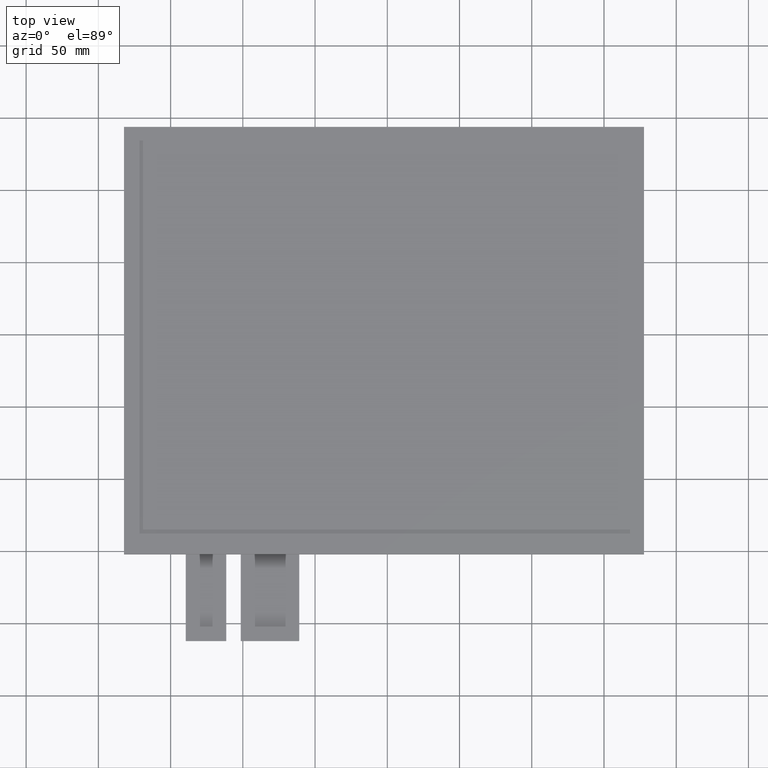
[diagram: clean part render]
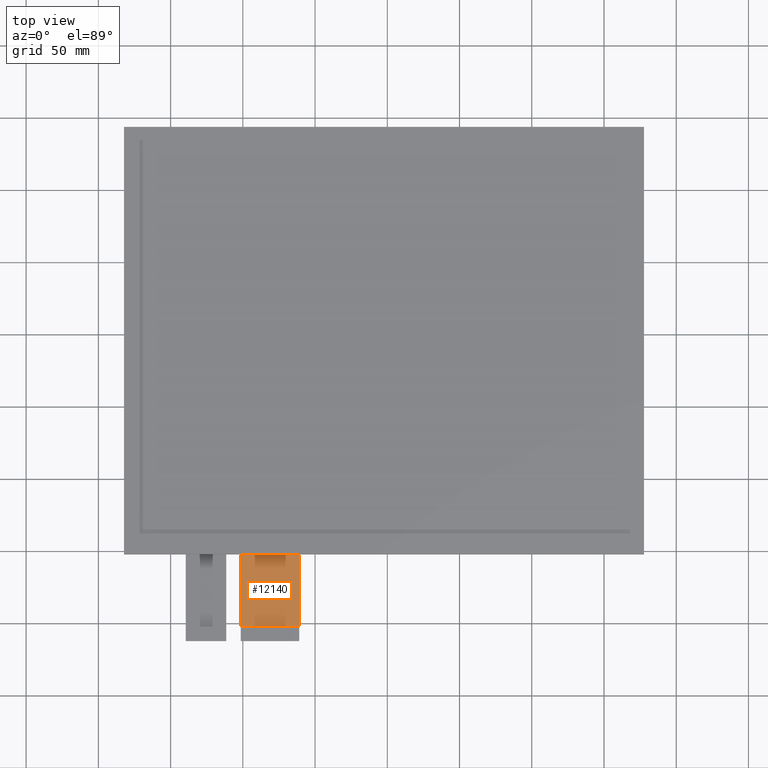
[diagram: same view with one face highlighted and labeled with its STEP entity id]
A machine part, top view. The second image highlights one B-rep face of the part: STEP entity #12140.
In plain terms, the highlighted planar face has unit normal (0, 0, 1).
Its self-contained STEP definition (entity closure, byte-faithful):
#682=PLANE('',#12746);
#1260=FACE_OUTER_BOUND('',#1838,.T.);
#1838=EDGE_LOOP('',(#11475,#11476,#11477,#11478));
#3514=LINE('',#18972,#5222);
#3517=LINE('',#18978,#5225);
#3527=LINE('',#18997,#5235);
#3528=LINE('',#18999,#5236);
#5222=VECTOR('',#15540,10.);
#5225=VECTOR('',#15545,10.);
#5235=VECTOR('',#15563,10.);
#5236=VECTOR('',#15566,10.);
#6396=VERTEX_POINT('',#18969);
#6397=VERTEX_POINT('',#18971);
#6399=VERTEX_POINT('',#18977);
#6404=VERTEX_POINT('',#18995);
#8090=EDGE_CURVE('',#6397,#6396,#3514,.T.);
#8093=EDGE_CURVE('',#6396,#6399,#3517,.T.);
#8103=EDGE_CURVE('',#6399,#6404,#3527,.T.);
#8104=EDGE_CURVE('',#6397,#6404,#3528,.T.);
#11475=ORIENTED_EDGE('',*,*,#8093,.T.);
#11476=ORIENTED_EDGE('',*,*,#8103,.T.);
#11477=ORIENTED_EDGE('',*,*,#8104,.F.);
#11478=ORIENTED_EDGE('',*,*,#8090,.T.);
#12140=ADVANCED_FACE('',(#1260),#682,.T.);
#12746=AXIS2_PLACEMENT_3D('',#18998,#15564,#15565);
#15540=DIRECTION('',(2.96059473233375E-16,-1.,0.));
#15545=DIRECTION('',(1.,0.,0.));
#15563=DIRECTION('',(1.03620815631681E-15,1.,0.));
#15564=DIRECTION('center_axis',(0.,0.,1.));
#15565=DIRECTION('ref_axis',(1.,0.,0.));
#15566=DIRECTION('',(1.,9.86864910777917E-17,0.));
#18969=CARTESIAN_POINT('',(-101.48,-202.15,-1.1));
#18971=CARTESIAN_POINT('',(-101.48,-152.15,-1.1));
#18972=CARTESIAN_POINT('',(-101.48,-152.15,-1.1));
#18977=CARTESIAN_POINT('',(-60.9799999999999,-202.15,-1.1));
#18978=CARTESIAN_POINT('',(-71.1049999999999,-202.15,-1.1));
#18995=CARTESIAN_POINT('',(-60.9799999999998,-152.15,-1.1));
#18997=CARTESIAN_POINT('',(-60.9799999999999,-212.15,-1.1));
#18998=CARTESIAN_POINT('Origin',(-81.2299999999999,-182.15,-1.1));
#18999=CARTESIAN_POINT('',(48.2450000000001,-152.15,-1.1));